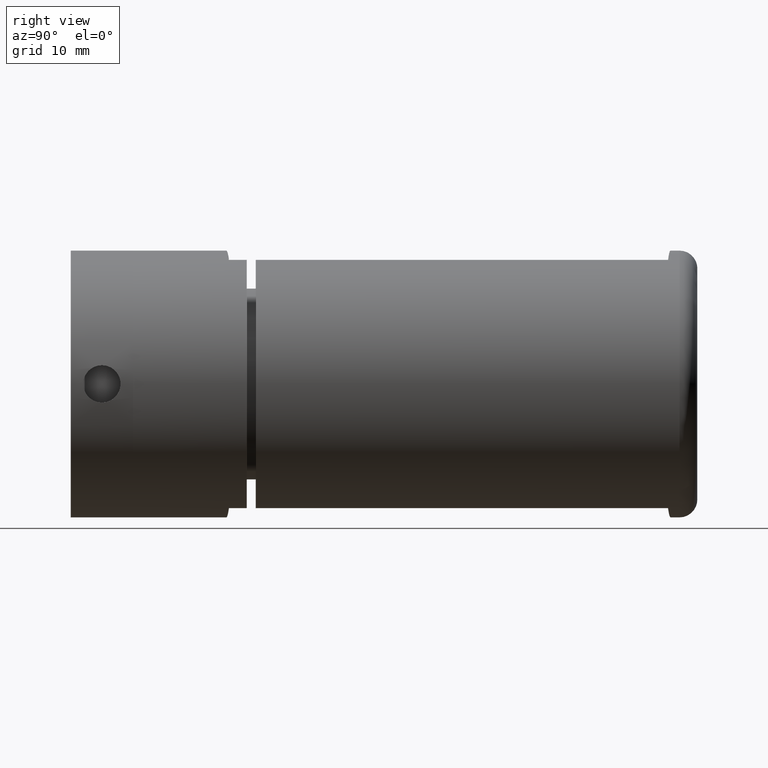
[diagram: clean part render]
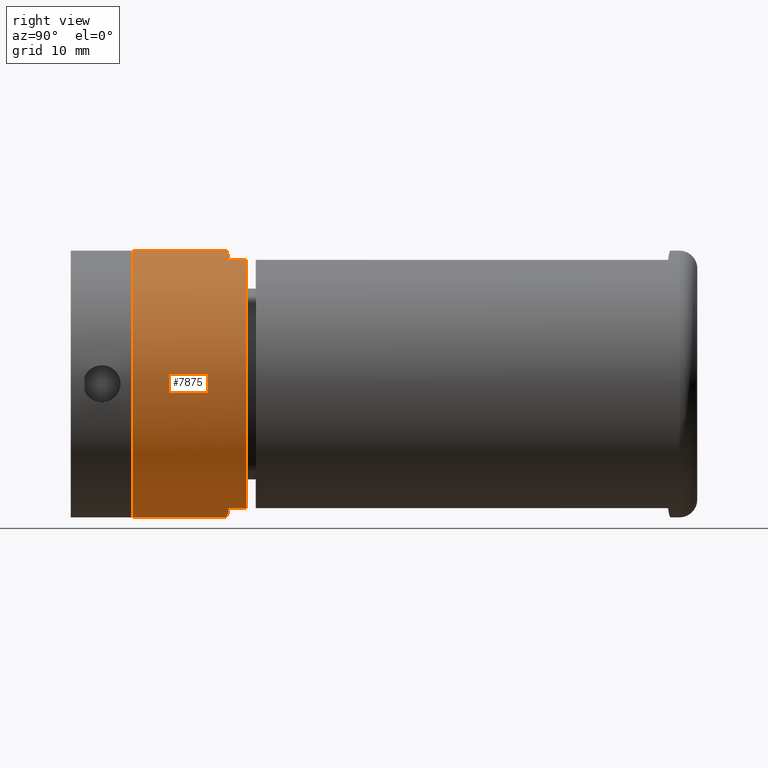
[diagram: same view with one face highlighted and labeled with its STEP entity id]
A machine part, right view. The second image highlights one B-rep face of the part: STEP entity #7875.
In plain terms, the highlighted cylindrical surface (bore or boss wall) has radius 15 mm, axis along (0, 1, -0).
Its self-contained STEP definition (entity closure, byte-faithful):
#22 =( BOUNDED_CURVE ( )  B_SPLINE_CURVE ( 3, ( #1843, #12525, #514, #5913 ),
 .UNSPECIFIED., .F., .F. ) 
 B_SPLINE_CURVE_WITH_KNOTS ( ( 4, 4 ),
 ( 1.195372718813857000, 1.570796326794896600 ),
 .UNSPECIFIED. ) 
 CURVE ( )  GEOMETRIC_REPRESENTATION_ITEM ( )  RATIONAL_B_SPLINE_CURVE ( ( 1.000000000000000000, 0.9882892067347445200, 0.9882892067347445200, 1.000000000000000000 ) ) 
 REPRESENTATION_ITEM ( '' )  );
#440 = ORIENTED_EDGE ( 'NONE', *, *, #12401, .T. ) ;
#514 = CARTESIAN_POINT ( 'NONE',  ( 1.888226473346295900, 2.201042243748465600, -14.99999999999999800 ) ) ;
#607 = VERTEX_POINT ( 'NONE', #7395 ) ;
#657 = VECTOR ( 'NONE', #1542, 1000.000000000000000 ) ;
#731 = CARTESIAN_POINT ( 'NONE',  ( 0.0000000000000000000, 2.299999999999999800, -15.00000000000000000 ) ) ;
#850 = DIRECTION ( 'NONE',  ( 0.0000000000000000000, 1.000000000000000000, 0.0000000000000000000 ) ) ;
#875 = CARTESIAN_POINT ( 'NONE',  ( 0.0000000000000000000, 0.0000000000000000000, 0.0000000000000000000 ) ) ;
#1153 = FACE_OUTER_BOUND ( 'NONE', #2769, .T. ) ;
#1365 = CIRCLE ( 'NONE', #4788, 15.00000000000000000 ) ;
#1542 = DIRECTION ( 'NONE',  ( -0.0000000000000000000, -1.000000000000000000, -0.0000000000000000000 ) ) ;
#1843 = CARTESIAN_POINT ( 'NONE',  ( 5.500000000000000900, 2.011757213943253100, -13.95528573695286000 ) ) ;
#2113 = VERTEX_POINT ( 'NONE', #731 ) ;
#2154 = DIRECTION ( 'NONE',  ( 0.0000000000000000000, 1.000000000000000000, 0.0000000000000000000 ) ) ;
#2223 = VERTEX_POINT ( 'NONE', #17004 ) ;
#2310 = VERTEX_POINT ( 'NONE', #6486 ) ;
#2314 = EDGE_CURVE ( 'NONE', #2113, #8393, #8734, .T. ) ;
#2401 = EDGE_CURVE ( 'NONE', #2310, #607, #15101, .T. ) ;
#2587 = VERTEX_POINT ( 'NONE', #8296 ) ;
#2702 = ORIENTED_EDGE ( 'NONE', *, *, #2314, .T. ) ;
#2768 = CARTESIAN_POINT ( 'NONE',  ( -1.888226473346291500, 2.201042243748465600, -14.99999999999999800 ) ) ;
#2769 = EDGE_LOOP ( 'NONE', ( #4851 ) ) ;
#2883 = VECTOR ( 'NONE', #850, 1000.000000000000000 ) ;
#2937 = ORIENTED_EDGE ( 'NONE', *, *, #6881, .T. ) ;
#2998 = ORIENTED_EDGE ( 'NONE', *, *, #12207, .T. ) ;
#3059 = CIRCLE ( 'NONE', #5962, 15.00000000000000000 ) ;
#3211 = CARTESIAN_POINT ( 'NONE',  ( 0.0000000000000000000, 12.80000000000000100, 0.0000000000000000000 ) ) ;
#3411 = DIRECTION ( 'NONE',  ( 0.0000000000000000000, 1.000000000000000000, 0.0000000000000000000 ) ) ;
#3428 = DIRECTION ( 'NONE',  ( 0.0000000000000000000, 1.000000000000000000, 0.0000000000000000000 ) ) ;
#3429 = DIRECTION ( 'NONE',  ( -0.0000000000000000000, -1.000000000000000000, -0.0000000000000000000 ) ) ;
#3533 = EDGE_LOOP ( 'NONE', ( #11611, #11220, #440, #12518, #7106, #2937, #16048, #5638, #2702, #2998 ) ) ;
#3781 = CARTESIAN_POINT ( 'NONE',  ( -3.743284001891578900, 2.103822798235113200, 14.64763544384650000 ) ) ;
#4361 = CARTESIAN_POINT ( 'NONE',  ( 5.500000000000005300, 12.79999999999999900, 13.95528573695286000 ) ) ;
#4483 = EDGE_CURVE ( 'NONE', #2223, #10176, #9624, .T. ) ;
#4553 = CARTESIAN_POINT ( 'NONE',  ( 0.0000000000000000000, 2.299999999999999800, 15.00000000000000000 ) ) ;
#4788 = AXIS2_PLACEMENT_3D ( 'NONE', #10019, #3428, #4790 ) ;
#4790 = DIRECTION ( 'NONE',  ( 0.0000000000000000000, 0.0000000000000000000, 1.000000000000000000 ) ) ;
#4851 = ORIENTED_EDGE ( 'NONE', *, *, #8419, .F. ) ;
#5369 = CARTESIAN_POINT ( 'NONE',  ( 0.0000000000000000000, 2.299999999999999800, 15.00000000000000000 ) ) ;
#5638 = ORIENTED_EDGE ( 'NONE', *, *, #15546, .T. ) ;
#5774 = DIRECTION ( 'NONE',  ( 0.0000000000000000000, 1.000000000000000000, 0.0000000000000000000 ) ) ;
#5814 = CARTESIAN_POINT ( 'NONE',  ( -5.500000000000000000, 0.0000000000000000000, -13.95528573695286000 ) ) ;
#5913 = CARTESIAN_POINT ( 'NONE',  ( 0.0000000000000000000, 2.299999999999999800, -15.00000000000000000 ) ) ;
#5962 = AXIS2_PLACEMENT_3D ( 'NONE', #875, #2154, #11657 ) ;
#5981 = EDGE_CURVE ( 'NONE', #2587, #7808, #15409, .T. ) ;
#6486 = CARTESIAN_POINT ( 'NONE',  ( 5.500000000000000900, 2.011757213943253100, 13.95528573695285800 ) ) ;
#6513 = VERTEX_POINT ( 'NONE', #12880 ) ;
#6881 = EDGE_CURVE ( 'NONE', #607, #2587, #16624, .T. ) ;
#6949 = VECTOR ( 'NONE', #3411, 1000.000000000000000 ) ;
#7106 = ORIENTED_EDGE ( 'NONE', *, *, #2401, .T. ) ;
#7395 = CARTESIAN_POINT ( 'NONE',  ( 5.500000000000000000, 0.0000000000000000000, 13.95528573695285800 ) ) ;
#7808 = VERTEX_POINT ( 'NONE', #11384 ) ;
#7875 = ADVANCED_FACE ( 'NONE', ( #1153, #12831 ), #14538, .T. ) ;
#8268 = AXIS2_PLACEMENT_3D ( 'NONE', #3211, #12529, #8506 ) ;
#8296 = CARTESIAN_POINT ( 'NONE',  ( 5.500000000000000000, 0.0000000000000000000, -13.95528573695286000 ) ) ;
#8386 = CARTESIAN_POINT ( 'NONE',  ( -5.500000000000000900, 2.011757213943253100, 13.95528573695286500 ) ) ;
#8393 = VERTEX_POINT ( 'NONE', #8925 ) ;
#8419 = EDGE_CURVE ( 'NONE', #14599, #14599, #1365, .T. ) ;
#8506 = DIRECTION ( 'NONE',  ( 0.0000000000000000000, 0.0000000000000000000, -1.000000000000000000 ) ) ;
#8709 = CARTESIAN_POINT ( 'NONE',  ( 1.888226473346291500, 2.201042243748465600, 14.99999999999999800 ) ) ;
#8734 =( BOUNDED_CURVE ( )  B_SPLINE_CURVE ( 3, ( #14509, #2768, #10838, #13328 ),
 .UNSPECIFIED., .F., .F. ) 
 B_SPLINE_CURVE_WITH_KNOTS ( ( 4, 4 ),
 ( 4.712388980384689700, 5.087812588365729000 ),
 .UNSPECIFIED. ) 
 CURVE ( )  GEOMETRIC_REPRESENTATION_ITEM ( )  RATIONAL_B_SPLINE_CURVE ( ( 1.000000000000000000, 0.9882892067347445200, 0.9882892067347445200, 1.000000000000000000 ) ) 
 REPRESENTATION_ITEM ( '' )  );
#8814 = AXIS2_PLACEMENT_3D ( 'NONE', #11156, #5774, #15144 ) ;
#8925 = CARTESIAN_POINT ( 'NONE',  ( -5.500000000000000900, 2.011757213943253100, -13.95528573695286500 ) ) ;
#9624 = LINE ( 'NONE', #16866, #6949 ) ;
#9855 = CARTESIAN_POINT ( 'NONE',  ( 3.743284001891575400, 2.103822798235113200, 14.64763544384650200 ) ) ;
#10019 = CARTESIAN_POINT ( 'NONE',  ( 0.0000000000000000000, 12.80000000000000100, 0.0000000000000000000 ) ) ;
#10176 = VERTEX_POINT ( 'NONE', #8386 ) ;
#10838 = CARTESIAN_POINT ( 'NONE',  ( -3.743284001891575400, 2.103822798235113200, -14.64763544384650200 ) ) ;
#10848 =( BOUNDED_CURVE ( )  B_SPLINE_CURVE ( 3, ( #4553, #8709, #9855, #14044 ),
 .UNSPECIFIED., .F., .F. ) 
 B_SPLINE_CURVE_WITH_KNOTS ( ( 4, 4 ),
 ( 4.712388980384689700, 5.087812588365729000 ),
 .UNSPECIFIED. ) 
 CURVE ( )  GEOMETRIC_REPRESENTATION_ITEM ( )  RATIONAL_B_SPLINE_CURVE ( ( 1.000000000000000000, 0.9882892067347445200, 0.9882892067347445200, 1.000000000000000000 ) ) 
 REPRESENTATION_ITEM ( '' )  );
#11041 = VERTEX_POINT ( 'NONE', #5814 ) ;
#11156 = CARTESIAN_POINT ( 'NONE',  ( 0.0000000000000000000, 0.0000000000000000000, 0.0000000000000000000 ) ) ;
#11220 = ORIENTED_EDGE ( 'NONE', *, *, #4483, .T. ) ;
#11232 = VECTOR ( 'NONE', #3429, 1000.000000000000000 ) ;
#11384 = CARTESIAN_POINT ( 'NONE',  ( 5.500000000000000900, 2.011757213943253100, -13.95528573695286000 ) ) ;
#11611 = ORIENTED_EDGE ( 'NONE', *, *, #16988, .T. ) ;
#11657 = DIRECTION ( 'NONE',  ( 0.0000000000000000000, 0.0000000000000000000, 1.000000000000000000 ) ) ;
#12071 = EDGE_CURVE ( 'NONE', #6513, #2310, #10848, .T. ) ;
#12207 = EDGE_CURVE ( 'NONE', #8393, #11041, #13958, .T. ) ;
#12401 = EDGE_CURVE ( 'NONE', #10176, #6513, #16491, .T. ) ;
#12518 = ORIENTED_EDGE ( 'NONE', *, *, #12071, .T. ) ;
#12525 = CARTESIAN_POINT ( 'NONE',  ( 3.743284001891579400, 2.103822798235113200, -14.64763544384650000 ) ) ;
#12529 = DIRECTION ( 'NONE',  ( -0.0000000000000000000, -1.000000000000000000, -0.0000000000000000000 ) ) ;
#12549 = CARTESIAN_POINT ( 'NONE',  ( -5.500000000000000900, 2.011757213943253100, 13.95528573695286500 ) ) ;
#12831 = FACE_OUTER_BOUND ( 'NONE', #3533, .T. ) ;
#12880 = CARTESIAN_POINT ( 'NONE',  ( 0.0000000000000000000, 2.299999999999999800, 15.00000000000000000 ) ) ;
#13328 = CARTESIAN_POINT ( 'NONE',  ( -5.500000000000000900, 2.011757213943253100, -13.95528573695286500 ) ) ;
#13536 = CARTESIAN_POINT ( 'NONE',  ( 0.0000000000000000000, 12.80000000000000100, 15.00000000000000000 ) ) ;
#13958 = LINE ( 'NONE', #14318, #11232 ) ;
#14044 = CARTESIAN_POINT ( 'NONE',  ( 5.500000000000000900, 2.011757213943253100, 13.95528573695285800 ) ) ;
#14318 = CARTESIAN_POINT ( 'NONE',  ( -5.500000000000005300, 12.79999999999999900, -13.95528573695286000 ) ) ;
#14458 = CARTESIAN_POINT ( 'NONE',  ( -1.888226473346295000, 2.201042243748465600, 14.99999999999999800 ) ) ;
#14509 = CARTESIAN_POINT ( 'NONE',  ( 0.0000000000000000000, 2.299999999999999800, -15.00000000000000000 ) ) ;
#14538 = CYLINDRICAL_SURFACE ( 'NONE', #8268, 15.00000000000000000 ) ;
#14599 = VERTEX_POINT ( 'NONE', #13536 ) ;
#15101 = LINE ( 'NONE', #4361, #657 ) ;
#15144 = DIRECTION ( 'NONE',  ( 0.0000000000000000000, 0.0000000000000000000, 1.000000000000000000 ) ) ;
#15409 = LINE ( 'NONE', #15450, #2883 ) ;
#15450 = CARTESIAN_POINT ( 'NONE',  ( 5.500000000000005300, 12.79999999999999900, -13.95528573695286000 ) ) ;
#15546 = EDGE_CURVE ( 'NONE', #7808, #2113, #22, .T. ) ;
#16048 = ORIENTED_EDGE ( 'NONE', *, *, #5981, .T. ) ;
#16491 =( BOUNDED_CURVE ( )  B_SPLINE_CURVE ( 3, ( #12549, #3781, #14458, #5369 ),
 .UNSPECIFIED., .F., .F. ) 
 B_SPLINE_CURVE_WITH_KNOTS ( ( 4, 4 ),
 ( 1.195372718813857200, 1.570796326794896600 ),
 .UNSPECIFIED. ) 
 CURVE ( )  GEOMETRIC_REPRESENTATION_ITEM ( )  RATIONAL_B_SPLINE_CURVE ( ( 1.000000000000000000, 0.9882892067347445200, 0.9882892067347445200, 1.000000000000000000 ) ) 
 REPRESENTATION_ITEM ( '' )  );
#16624 = CIRCLE ( 'NONE', #8814, 15.00000000000000000 ) ;
#16866 = CARTESIAN_POINT ( 'NONE',  ( -5.500000000000005300, 12.79999999999999900, 13.95528573695286000 ) ) ;
#16988 = EDGE_CURVE ( 'NONE', #11041, #2223, #3059, .T. ) ;
#17004 = CARTESIAN_POINT ( 'NONE',  ( -5.500000000000000000, 0.0000000000000000000, 13.95528573695285800 ) ) ;